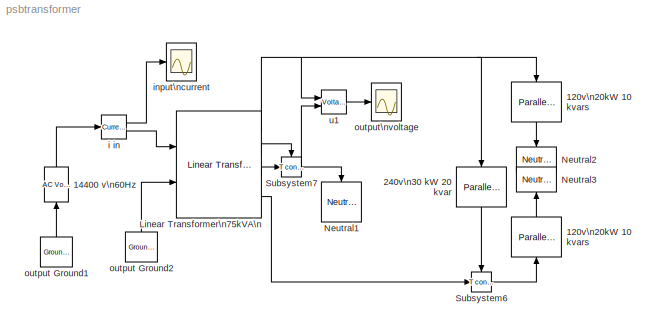
MODEL psbtransformer
KIND model
BLOCK [Reference] 120v\n20kW 10 kvars  REF=powerlib2/Elements/Parallel RLC Load
  PSBOutputType = 1
  Ports = [1, 1]
  SourceBlock = powerlib2/Elements/Parallel RLC Load
  SourceType = Parallel RLC Load
  Tag = PoWeRsYsTeMbLoCk
  a = 120
  b = 60
  c = 20e3
  d = 10e3
  e = 0
  mesure = None
BLOCK [Reference] 120v\n20kW 10 kvars   REF=powerlib2/Elements/Parallel RLC Load
  PSBOutputType = 1
  Ports = [1, 1]
  SourceBlock = powerlib2/Elements/Parallel RLC Load
  SourceType = Parallel RLC Load
  Tag = PoWeRsYsTeMbLoCk
  a = 120
  b = 60
  c = 20e3
  d = 10e3
  e = 0
  mesure = None
BLOCK [Reference] 14400 v\n60Hz  REF=powerlib2/Electrical\nSources/AC Voltage Source
  A = 14400*sqrt(2)
  F = 60
  P = 0
  PSBOutputType = 1
  Ports = [1, 1]
  SourceBlock = powerlib2/Electrical\nSources/AC Voltage Source
  SourceType = AC Voltage Source
  Tag = PoWeRsYsTeMbLoCk
  mesure = None
  stime = 0
BLOCK [Reference] 240v\n30 kW 20 kvar  REF=powerlib2/Elements/Parallel RLC Load
  PSBOutputType = 1
  Ports = [1, 1]
  SourceBlock = powerlib2/Elements/Parallel RLC Load
  SourceType = Parallel RLC Load
  Tag = PoWeRsYsTeMbLoCk
  a = 240
  b = 60
  c = 30e3
  d = 0
  e = 20e3
  mesure = None
BLOCK [Reference] Linear Transformer\n75kVA\n  REF=powerlib2/Elements/Linear Transformer
  PSBOutputType = 1111
  Ports = [2, 4]
  SourceBlock = powerlib2/Elements/Linear Transformer
  SourceType = Linear Transformer
  Tag = PoWeRsYsTeMbLoCk
  a = [75e3,60]
  b = [14.4e3 0.01,0.03]
  c = [120,0.02,0]
  d = [120,0.02,0]
  e = [50,50]
  mesure = None
BLOCK [Reference] Neutral1  REF=powerlib2/Connectors/Neutral (input)
  Ports = [1]
  SourceBlock = powerlib2/Connectors/Neutral (input)
  SourceType = Neutral
  Tag = PoWeRsYsTeMbLoCk
  no = 50
BLOCK [Reference] Neutral2  REF=powerlib2/Connectors/Neutral (input)
  Ports = [1]
  SourceBlock = powerlib2/Connectors/Neutral (input)
  SourceType = Neutral
  Tag = PoWeRsYsTeMbLoCk
  no = 50
BLOCK [Reference] Neutral3  REF=powerlib2/Connectors/Neutral (input)
  Ports = [1]
  SourceBlock = powerlib2/Connectors/Neutral (input)
  SourceType = Neutral
  Tag = PoWeRsYsTeMbLoCk
  no = 50
BLOCK [Reference] Subsystem6  REF=powerlib2/Connectors/T connector
  PSBOutputType = 1
  Ports = [1, 1, 1]
  SourceBlock = powerlib2/Connectors/T connector
  SourceType = Bus Bar
  Tag = PoWeRsYsTeMbLoCk
BLOCK [Reference] Subsystem7  REF=powerlib2/Connectors/T connector
  PSBOutputType = 1
  Ports = [1, 1, 1]
  SourceBlock = powerlib2/Connectors/T connector
  SourceType = Bus Bar
  Tag = PoWeRsYsTeMbLoCk
BLOCK [Reference] i in  REF=powerlib2/Measurements/Current Measurement
  PSBOutputType = 01
  PSBequivalent = 0
  Ports = [1, 2]
  SourceBlock = powerlib2/Measurements/Current Measurement
  SourceType = Current Measurement
  Tag = PoWeRsYsTeMmEaSuReMeNt
BLOCK [Scope] input\ncurrent
  DataFormat = Array
  DeleteFcn = simscope BlockIsBeingDestroyed
  NumInputPorts = 1
  Ports = [1]
  PostSaveFcn = simscope Save
  TickLabels = on
  TimeRange = 0.1
  YMax = 10
  YMin = -10
BLOCK [Reference] output Ground1  REF=powerlib2/Connectors/Ground (output)
  PSBOutputType = 1
  Ports = [0, 1]
  SourceBlock = powerlib2/Connectors/Ground (output)
  SourceType = Ground
  Tag = PoWeRsYsTeMbLoCk
BLOCK [Reference] output Ground2  REF=powerlib2/Connectors/Ground (output)
  PSBOutputType = 1
  Ports = [0, 1]
  SourceBlock = powerlib2/Connectors/Ground (output)
  SourceType = Ground
  Tag = PoWeRsYsTeMbLoCk
BLOCK [Scope] output\nvoltage
  DataFormat = Array
  DeleteFcn = simscope BlockIsBeingDestroyed
  NumInputPorts = 1
  Ports = [1]
  PostSaveFcn = simscope Save
  TickLabels = on
  TimeRange = 0.1
  YMax = 200
  YMin = -200
BLOCK [Reference] u1  REF=powerlib2/Measurements/Voltage Measurement
  PSBOutputType = 0
  PSBequivalent = 1
  Ports = [2, 1]
  SourceBlock = powerlib2/Measurements/Voltage Measurement
  SourceType = Voltage Measurement
  Tag = PoWeRsYsTeMmEaSuReMeNt
LINE 120v\n20kW 10 kvars :1 -> Neutral3:1
LINE 120v\n20kW 10 kvars:1 -> Neutral2:1
LINE 14400 v\n60Hz:1 -> i in:1
LINE 240v\n30 kW 20 kvar:1 -> Subsystem6:enable
NET Linear Transformer\n75kVA\n:1 -> 120v\n20kW 10 kvars:1, 240v\n30 kW 20 kvar:1, u1:1
LINE Linear Transformer\n75kVA\n:2 -> Subsystem7:enable
LINE Linear Transformer\n75kVA\n:3 -> Subsystem7:1
LINE Linear Transformer\n75kVA\n:4 -> Subsystem6:1
LINE Subsystem6:1 -> 120v\n20kW 10 kvars :1
NET Subsystem7:1 -> Neutral1:1, u1:2
LINE i in:1 -> input\ncurrent:1
LINE i in:2 -> Linear Transformer\n75kVA\n:1
LINE output Ground1:1 -> 14400 v\n60Hz:1
LINE output Ground2:1 -> Linear Transformer\n75kVA\n:2
LINE u1:1 -> output\nvoltage:1
note: NET lines group one-source signal fan-out (src -> all destinations, sorted); 1:1 wires keep LINE
